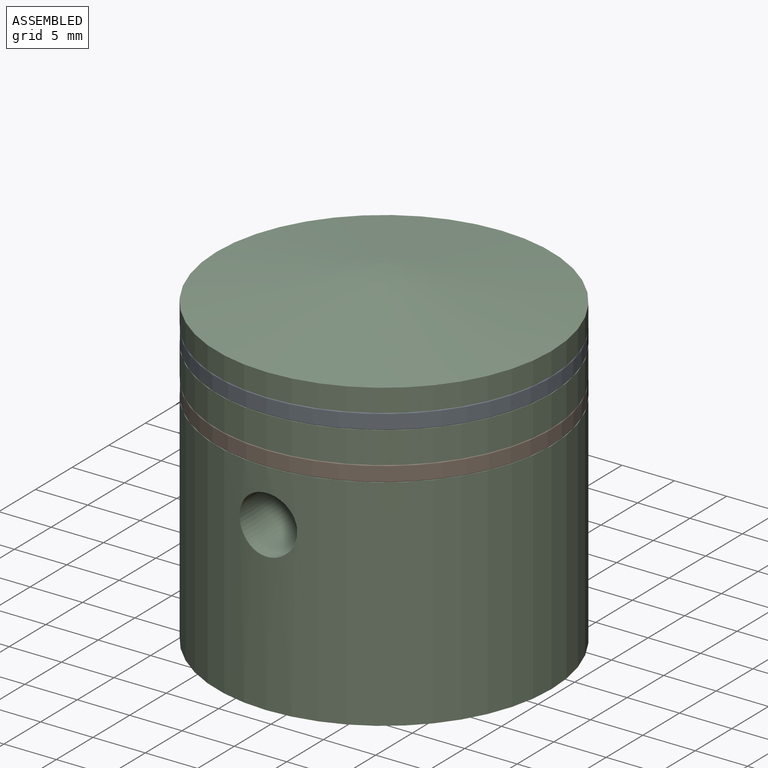
[diagram: assembled view]
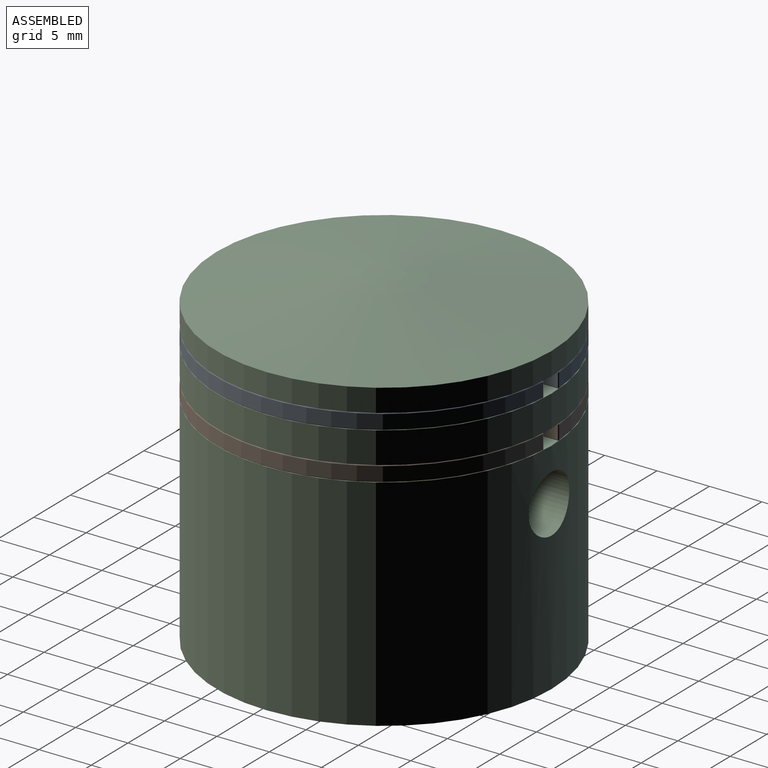
[diagram: assembled view, second angle]
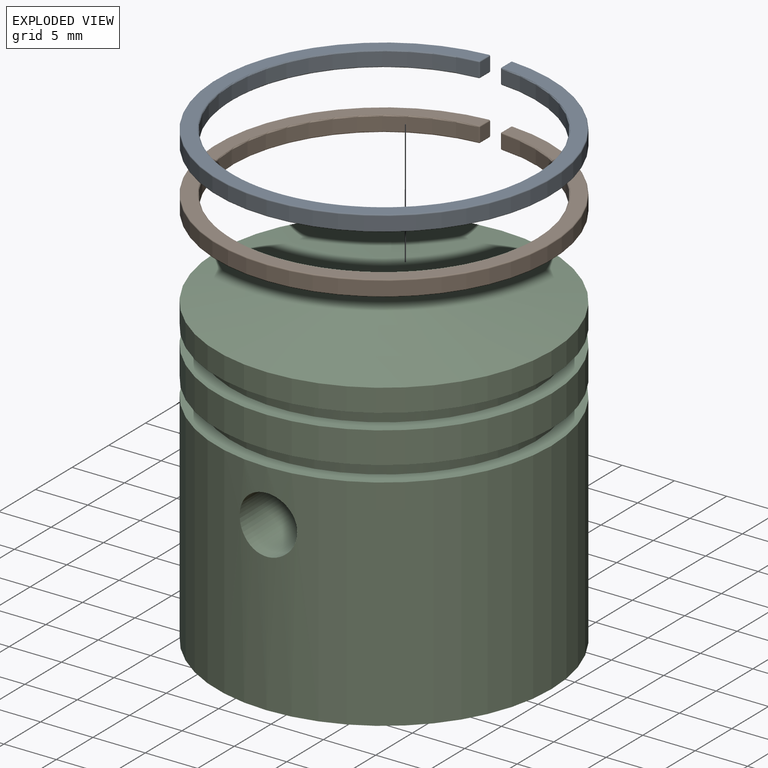
[diagram: exploded view]
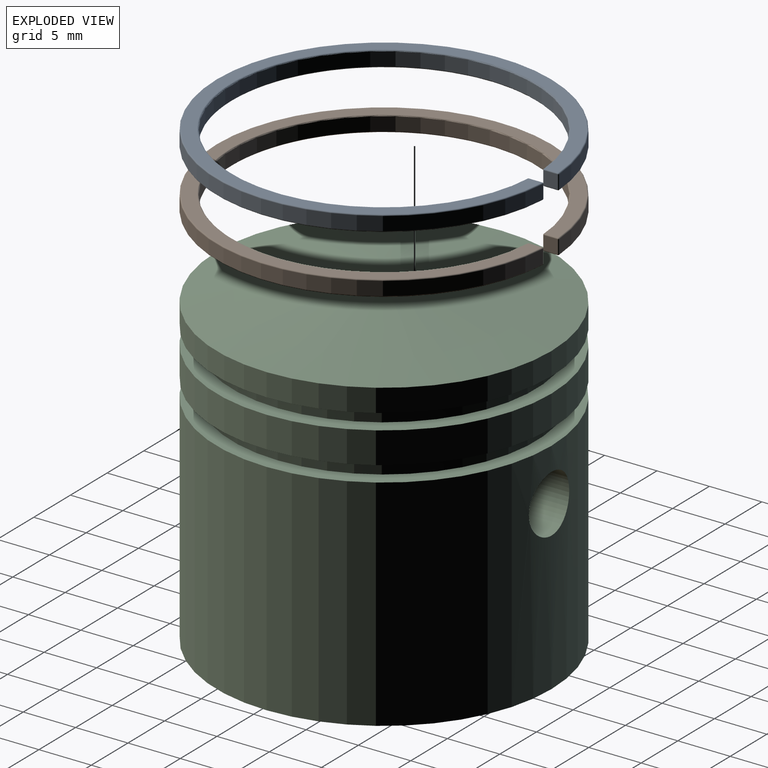
[diagram: exploded view, second angle]
ASSEMBLY  parts=3 mates=2
PART A: 26 faces, bbox 34.6x1.5x34.6 mm
  f0: plane 1.3x1.3mm, normal (-1,0,0), area 1.7mm2, adj f14,f19,f22,f25
  f1: cylinder r=16mm len=32mm, axis (0,1,0), area 127.8mm2, adj f11,f20,f21,f25
  f2: plane 1.3x1.3mm, normal (1,0,0), area 1.7mm2, adj f6,f10,f11,f12
  f3: cylinder r=14.5mm len=29mm, axis (0,1,0), area 115.6mm2, adj f6,f9,f13,f14
  f4: plane 31.8x31.76mm, normal (0,-1,0), area 121.7mm2, adj f9,f10,f19,f20
  f5: plane 31.8x31.76mm, normal (0,1,0), area 121.7mm2, adj f12,f13,f21,f22
  f6: cylinder r=0.1mm len=1.3mm, axis (0,1,0), area 0.2mm2, adj f2,f3,f7,f8
  f7: sphere r=0.1mm, area 0mm2, adj f6,f9,f10
  f8: sphere r=0.1mm, area 0mm2, adj f6,f12,f13
  f9: torus R=14.6mm, axis (0,-1,0), area 14mm2, adj f3,f4,f7,f15
  f10: cylinder r=0.1mm len=1.3mm, axis (0,0,-1), area 0.2mm2, adj f2,f4,f7,f16
  f11: cylinder r=0.1mm len=1.3mm, axis (0,1,0), area 0.2mm2, adj f1,f2,f16,f17
  f12: cylinder r=0.1mm len=1.3mm, axis (0,0,1), area 0.2mm2, adj f2,f5,f8,f17
  f13: torus R=14.6mm, axis (0,-1,0), area 14mm2, adj f3,f5,f8,f18
  f14: cylinder r=0.1mm len=1.3mm, axis (0,1,0), area 0.2mm2, adj f0,f3,f15,f18
  f15: sphere r=0.1mm, area 0mm2, adj f9,f14,f19
  f16: sphere r=0.1mm, area 0mm2, adj f10,f11,f20
  f17: sphere r=0.1mm, area 0mm2, adj f11,f12,f21
  f18: sphere r=0.1mm, area 0mm2, adj f13,f14,f22
  f19: cylinder r=0.1mm len=1.3mm, axis (0,0,1), area 0.2mm2, adj f0,f4,f15,f23
  f20: torus R=15.9mm, axis (0,-1,0), area 15.4mm2, adj f1,f4,f16,f23
  f21: torus R=15.9mm, axis (0,-1,0), area 15.4mm2, adj f1,f5,f17,f24
  f22: cylinder r=0.1mm len=1.3mm, axis (0,0,-1), area 0.2mm2, adj f0,f5,f18,f24
  f23: sphere r=0.1mm, area 0mm2, adj f19,f20,f25
  f24: sphere r=0.1mm, area 0mm2, adj f21,f22,f25
  f25: cylinder r=0.1mm len=1.3mm, axis (0,1,0), area 0.2mm2, adj f0,f1,f23,f24
PART B: same geometry as A
PART C: 18 faces, bbox 32x32x31.7 mm
  f0: cylinder r=16mm len=32mm, axis (0,0,1), area 2063.6mm2, adj f11,f12,f16,f17
  f1: cylinder r=10mm len=20mm, axis (0,0,1), area 831.7mm2, adj f14,f15,f16,f17
  f2: sphere r=20mm, area 38.2mm2, adj f3
  f3: cone r=3.47mm half-angle=80deg, axis (0,0,-1), area 778.2mm2, adj f2,f4
  f4: cylinder r=16mm len=32mm, axis (0,0,1), area 219mm2, adj f3,f5
  f5: plane 32x32mm, normal (0,0,-1), area 143.7mm2, adj f4,f6
  f6: cylinder r=14.5mm len=29mm, axis (0,0,1), area 136.7mm2, adj f5,f7
  f7: plane 32x32mm, normal (0,0,1), area 143.7mm2, adj f6,f8
  f8: cylinder r=16mm len=32mm, axis (0,0,1), area 301.6mm2, adj f7,f9
  f9: plane 32x32mm, normal (0,0,-1), area 143.7mm2, adj f8,f10
  f10: cylinder r=14.5mm len=29mm, axis (0,0,1), area 136.7mm2, adj f9,f11
  f11: plane 32x32mm, normal (0,0,1), area 143.7mm2, adj f0,f10
  f12: plane 32x32mm, normal (0,0,-1), area 273.3mm2, adj f0,f13
  f13: cylinder r=13mm len=26mm, axis (0,0,1), area 816.8mm2, adj f12,f14
  f14: plane 26x26mm, normal (0,0,-1), area 216.8mm2, adj f1,f13
  f15: plane 20x20mm, normal (0,0,-1), area 314.2mm2, adj f1
  f16: cylinder r=2.75mm len=6.39mm, axis (0,1,0), area 104.9mm2, adj f0,f1
  f17: cylinder r=2.75mm len=6.39mm, axis (0,-1,0), area 104.9mm2, adj f0,f1
PLACE A rot(axis=(0,-0.71,0.71),180deg) t=(14.28,21.44,29.45)mm
PLACE B rot(axis=(1,0,0),90deg) t=(14.28,21.44,26.45)mm
PLACE C t=(14.28,21.44,3.95)mm
MATE fastened A.f3 <-> C.f0  axis (0,0,-1) through (14.28,21.44,29.45)mm
MATE fastened B.f3 <-> C.f0  axis (0,0,-1) through (14.28,21.44,24.95)mm
